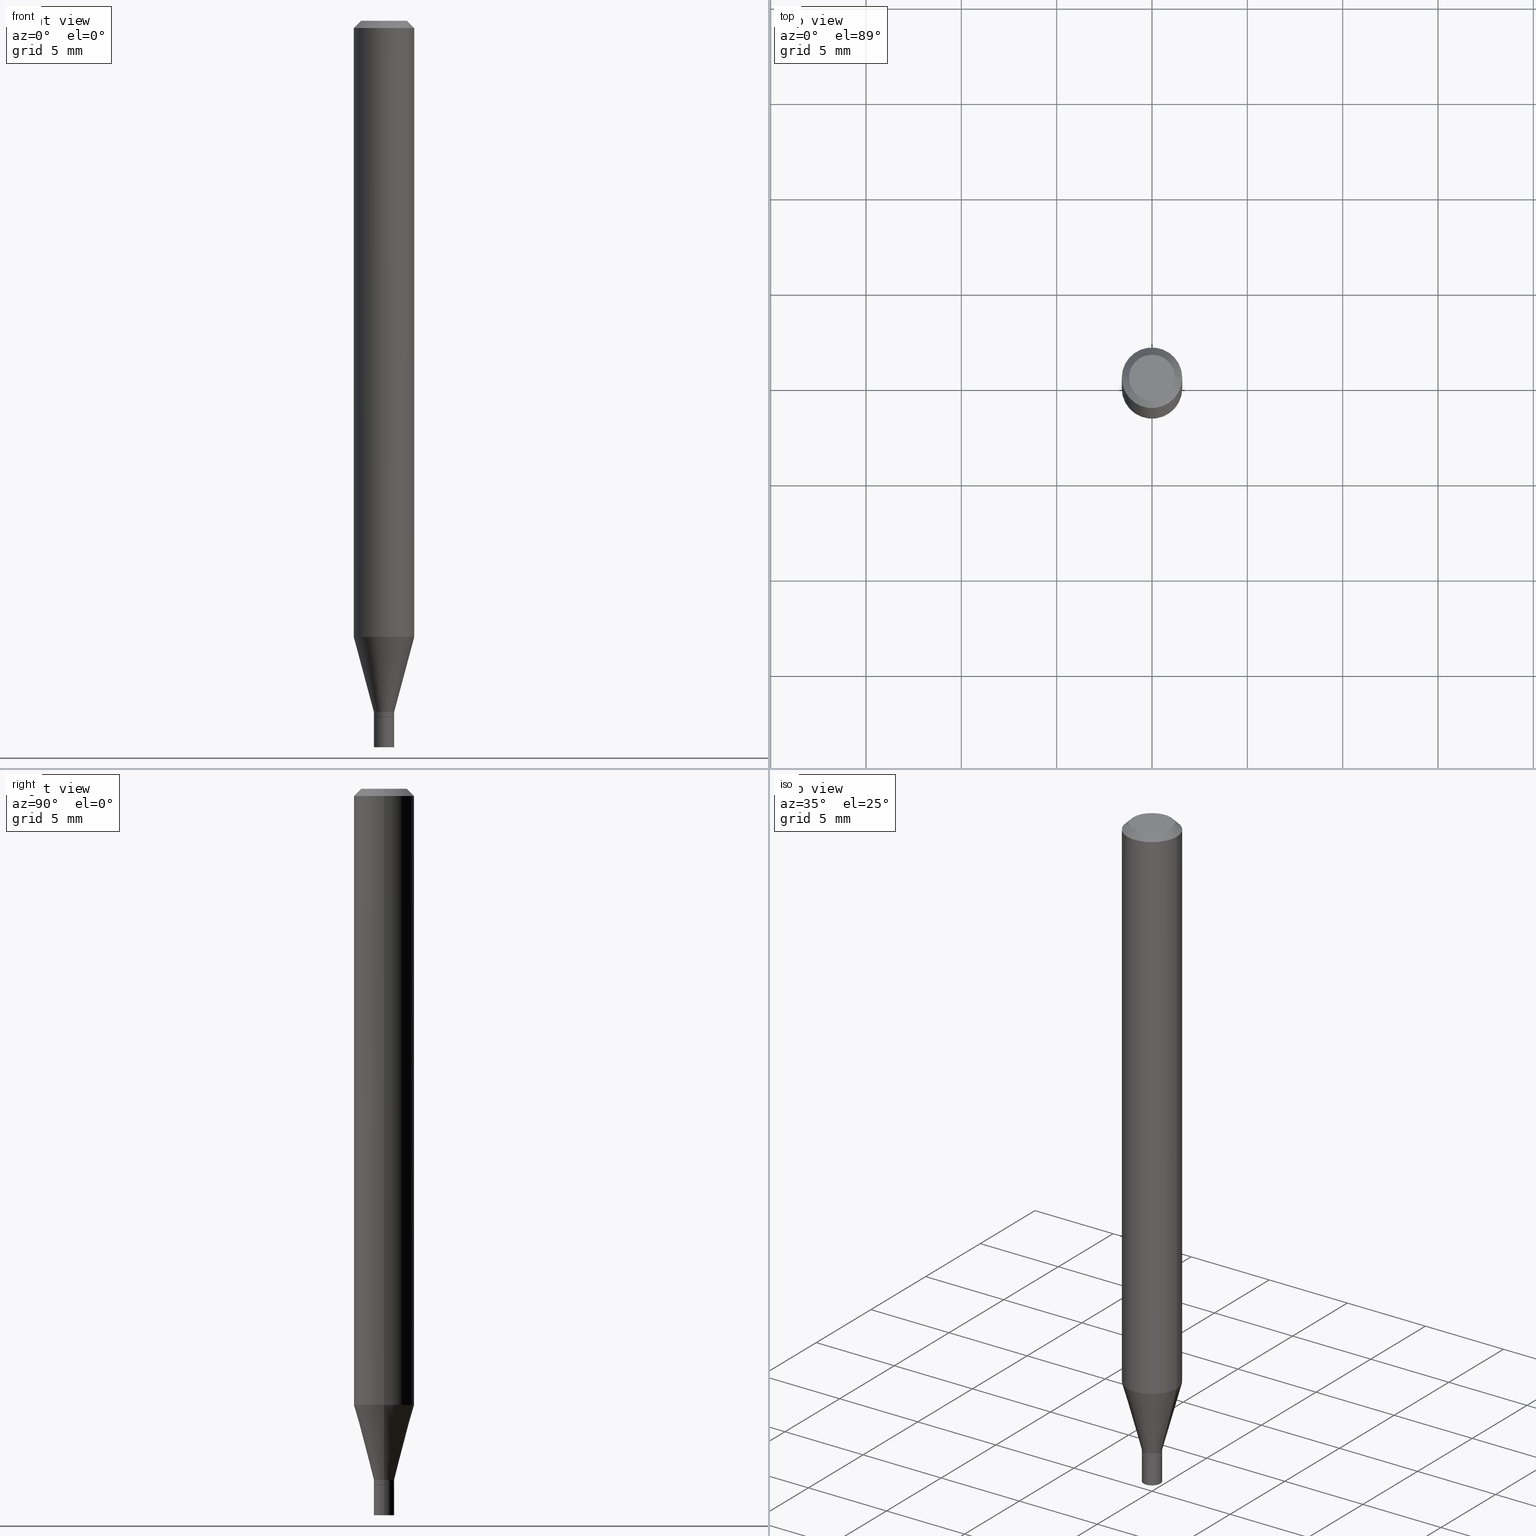
[diagram: canonical four-view strip — front | top / right | iso, engineering-drawing reading convention]
A machine part, canonical four-view strip (front | top / right | iso — engineering-drawing reading convention). The complete STEP part file that produces these views, byte-faithful:
ISO-10303-21;
HEADER;
FILE_DESCRIPTION (( 'STEP AP203' ),
    '1' );
FILE_NAME ('00409.STEP',
    '2024-03-19T21:11:41',
    ( '' ),
    ( '' ),
    'SwSTEP 2.0',
    'SolidWorks 2023',
    '' );
FILE_SCHEMA (( 'CONFIG_CONTROL_DESIGN' ));
ENDSEC;

DATA;
#1 = DIRECTION ( 'NONE',  ( 1.000000000000000000, -6.982962677686266711E-15, 0.000000000000000000 ) ) ;
#2 = PERSON_AND_ORGANIZATION ( #88, #220 ) ;
#3 = AXIS2_PLACEMENT_3D ( 'NONE', #415, #164, #121 ) ;
#4 = EDGE_CURVE ( 'NONE', #352, #408, #286, .T. ) ;
#5 = DIRECTION ( 'NONE',  ( 2.445468806185136597E-29, -3.491481338843145583E-15, -1.000000000000000000 ) ) ;
#6 = ORIENTED_EDGE ( 'NONE', *, *, #185, .F. ) ;
#7 =( NAMED_UNIT ( * ) SI_UNIT ( $, .STERADIAN. ) SOLID_ANGLE_UNIT ( ) );
#8 = DIRECTION ( 'NONE',  ( 2.438088387897960049E-29, -3.491481338843145188E-15, -1.000000000000000000 ) ) ;
#9 = EDGE_LOOP ( 'NONE', ( #34, #39 ) ) ;
#10 = COORDINATED_UNIVERSAL_TIME_OFFSET ( 5, 0, .BEHIND. ) ;
#11 = LINE ( 'NONE', #258, #17 ) ;
#12 = ORIENTED_EDGE ( 'NONE', *, *, #67, .F. ) ;
#13 = ORIENTED_EDGE ( 'NONE', *, *, #276, .F. ) ;
#14 = APPROVAL_ROLE ( '' ) ;
#15 = VECTOR ( 'NONE', #165, 39.37007874015748143 ) ;
#16 = DIRECTION ( 'NONE',  ( 0.2588190451025217387, 1.565188264969619207E-15, 0.9659258262890679791 ) ) ;
#17 = VECTOR ( 'NONE', #79, 39.37007874015748143 ) ;
#18 =( GEOMETRIC_REPRESENTATION_CONTEXT ( 3 ) GLOBAL_UNCERTAINTY_ASSIGNED_CONTEXT ( ( #132 ) ) GLOBAL_UNIT_ASSIGNED_CONTEXT ( ( #290, #73, #7 ) ) REPRESENTATION_CONTEXT ( 'NONE', 'WORKASPACE' ) );
#19 = ORIENTED_EDGE ( 'NONE', *, *, #95, .T. ) ;
#20 = LINE ( 'NONE', #141, #349 ) ;
#21 = CARTESIAN_POINT ( 'NONE',  ( 0.04749999999999999362, -4.035134999187576158E-16, 1.317956160873497667E-16 ) ) ;
#22 = CC_DESIGN_PERSON_AND_ORGANIZATION_ASSIGNMENT ( #57, #208, ( #96 ) ) ;
#23 = CARTESIAN_POINT ( 'NONE',  ( 3.489683986426190072E-29, -4.982343870529169189E-15, -1.427000000000000046 ) ) ;
#24 = AXIS2_PLACEMENT_3D ( 'NONE', #25, #26, #252 ) ;
#25 = CARTESIAN_POINT ( 'NONE',  ( 0.000000000000000000, 0.000000000000000000, 0.000000000000000000 ) ) ;
#26 = DIRECTION ( 'NONE',  ( -2.445468806185136597E-29, 3.491481338843145583E-15, 1.000000000000000000 ) ) ;
#27 = EDGE_CURVE ( 'NONE', #87, #160, #319, .T. ) ;
#28 = PRODUCT_DEFINITION_SHAPE ( 'NONE', 'NONE',  #291 ) ;
#29 = FACE_OUTER_BOUND ( 'NONE', #241, .T. ) ;
#30 = AXIS2_PLACEMENT_3D ( 'NONE', #268, #369, #37 ) ;
#31 = EDGE_CURVE ( 'NONE', #275, #419, #325, .T. ) ;
#32 = EDGE_CURVE ( 'NONE', #453, #302, #423, .T. ) ;
#33 = LOCAL_TIME ( 17, 11, 41.00000000000000000, #321 ) ;
#34 = ORIENTED_EDGE ( 'NONE', *, *, #27, .T. ) ;
#35 = CARTESIAN_POINT ( 'NONE',  ( 0.000000000000000000, 0.000000000000000000, 0.000000000000000000 ) ) ;
#36 = ORIENTED_EDGE ( 'NONE', *, *, #66, .T. ) ;
#37 = DIRECTION ( 'NONE',  ( 1.000000000000000000, -6.982962677686265922E-15, 0.000000000000000000 ) ) ;
#38 = DIRECTION ( 'NONE',  ( 1.000000000000000000, -6.982962677686265922E-15, 4.876176775795935232E-29 ) ) ;
#39 = ORIENTED_EDGE ( 'NONE', *, *, #254, .T. ) ;
#40 = ORIENTED_EDGE ( 'NONE', *, *, #95, .F. ) ;
#41 = CLOSED_SHELL ( 'NONE', ( #101, #214, #245, #184, #99, #205, #353, #78, #128, #391, #74, #218 ) ) ;
#42 = DIRECTION ( 'NONE',  ( 1.000000000000000000, -6.982962677686263555E-15, 0.000000000000000000 ) ) ;
#43 = VECTOR ( 'NONE', #355, 39.37007874015748143 ) ;
#44 = CARTESIAN_POINT ( 'NONE',  ( 3.668203209277704895E-29, -5.237222008264718177E-15, -1.500000000000000222 ) ) ;
#45 = ORIENTED_EDGE ( 'NONE', *, *, #171, .T. ) ;
#46 = PERSON_AND_ORGANIZATION_ROLE ( 'design_owner' ) ;
#47 = DIRECTION ( 'NONE',  ( -2.445468806185136597E-29, 3.491481338843145583E-15, 1.000000000000000000 ) ) ;
#48 = ORIENTED_EDGE ( 'NONE', *, *, #4, .T. ) ;
#49 = PERSON_AND_ORGANIZATION ( #88, #220 ) ;
#50 = DIRECTION ( 'NONE',  ( 1.000000000000000000, -6.982962677686266711E-15, 4.876176775795936353E-29 ) ) ;
#51 = DIRECTION ( 'NONE',  ( -2.445468806185136597E-29, 3.491481338843145583E-15, 1.000000000000000000 ) ) ;
#52 = APPLICATION_CONTEXT ( 'configuration controlled 3d designs of mechanical parts and assemblies' ) ;
#53 = CONICAL_SURFACE ( 'NONE', #402, 0.02050000000000000086, 0.7853981633974739252 ) ;
#54 = CIRCLE ( 'NONE', #147, 0.06250000000000000000 ) ;
#55 = DIRECTION ( 'NONE',  ( -2.445468806185136597E-29, 3.491481338843145583E-15, 1.000000000000000000 ) ) ;
#56 = CALENDAR_DATE ( 2024, 19, 3 ) ;
#57 = PERSON_AND_ORGANIZATION ( #88, #220 ) ;
#58 = SECURITY_CLASSIFICATION_LEVEL ( 'unclassified' ) ;
#59 = CALENDAR_DATE ( 2024, 19, 3 ) ;
#60 = AXIS2_PLACEMENT_3D ( 'NONE', #129, #75, #50 ) ;
#61 = LOCAL_TIME ( 17, 11, 41.00000000000000000, #10 ) ;
#62 = DIRECTION ( 'NONE',  ( -2.445468806185136597E-29, 3.491481338843145583E-15, 1.000000000000000000 ) ) ;
#63 = DIRECTION ( 'NONE',  ( 1.000000000000000000, -6.982962677686266711E-15, 4.876176775795936353E-29 ) ) ;
#64 = CARTESIAN_POINT ( 'NONE',  ( 3.514138674488041056E-29, -5.017258683917600838E-15, -1.437000000000000055 ) ) ;
#65 = AXIS2_PLACEMENT_3D ( 'NONE', #457, #100, #249 ) ;
#66 = EDGE_CURVE ( 'NONE', #295, #302, #76, .T. ) ;
#67 = EDGE_CURVE ( 'NONE', #72, #295, #279, .T. ) ;
#68 = VERTEX_POINT ( 'NONE', #190 ) ;
#69 = AXIS2_PLACEMENT_3D ( 'NONE', #421, #169, #216 ) ;
#70 = LOCAL_TIME ( 17, 11, 41.00000000000000000, #346 ) ;
#71 = FACE_OUTER_BOUND ( 'NONE', #441, .T. ) ;
#72 = VERTEX_POINT ( 'NONE', #93 ) ;
#73 =( NAMED_UNIT ( * ) PLANE_ANGLE_UNIT ( ) SI_UNIT ( $, .RADIAN. ) );
#74 = ADVANCED_FACE ( 'NONE', ( #267 ), #53, .T. ) ;
#75 = DIRECTION ( 'NONE',  ( -2.445468806185136597E-29, 3.491481338843145583E-15, 1.000000000000000000 ) ) ;
#76 = LINE ( 'NONE', #305, #15 ) ;
#77 = EDGE_LOOP ( 'NONE', ( #400, #381, #344, #92 ) ) ;
#78 = ADVANCED_FACE ( 'NONE', ( #256 ), #206, .T. ) ;
#79 = DIRECTION ( 'NONE',  ( -2.445468806185136877E-29, 3.491481338843145188E-15, 1.000000000000000000 ) ) ;
#80 = CARTESIAN_POINT ( 'NONE',  ( 0.06250000000000000000, -4.878018029249550992E-15, -1.272119891485891996 ) ) ;
#81 = ORIENTED_EDGE ( 'NONE', *, *, #222, .F. ) ;
#82 = VECTOR ( 'NONE', #136, 39.37007874015748143 ) ;
#83 = CARTESIAN_POINT ( 'NONE',  ( -0.02050000000000000086, -4.868948195912669364E-15, -1.437000000000000055 ) ) ;
#84 = CONICAL_SURFACE ( 'NONE', #251, 0.06250000000000000000, 0.7853981633974439491 ) ;
#85 = CARTESIAN_POINT ( 'NONE',  ( 0.000000000000000000, 0.000000000000000000, 0.000000000000000000 ) ) ;
#86 = ORIENTED_EDGE ( 'NONE', *, *, #324, .F. ) ;
#87 = VERTEX_POINT ( 'NONE', #322 ) ;
#88 = PERSON ( 'UNSPECIFIED', 'UNSPECIFIED', 'UNSPECIFIED', ('UNSPECIFIED'), ('UNSPECIFIED'), ('UNSPECIFIED') ) ;
#89 = APPROVAL ( #201, 'UNSPECIFIED' ) ;
#90 = DIRECTION ( 'NONE',  ( -2.445468806185136597E-29, 3.491481338843145583E-15, 1.000000000000000000 ) ) ;
#91 = ORIENTED_EDGE ( 'NONE', *, *, #330, .T. ) ;
#92 = ORIENTED_EDGE ( 'NONE', *, *, #309, .F. ) ;
#93 = CARTESIAN_POINT ( 'NONE',  ( -0.02099999999999993192, -4.415311774031822362E-15, -1.427000000000000046 ) ) ;
#94 = AXIS2_PLACEMENT_3D ( 'NONE', #310, #422, #410 ) ;
#95 = EDGE_CURVE ( 'NONE', #113, #449, #20, .T. ) ;
#96 = PRODUCT_DEFINITION_FORMATION_WITH_SPECIFIED_SOURCE ( 'ANY', '', #223, .NOT_KNOWN. ) ;
#97 = DIRECTION ( 'NONE',  ( 1.000000000000000000, -6.982962677686263555E-15, 0.000000000000000000 ) ) ;
#98 = PERSON_AND_ORGANIZATION_ROLE ( 'creator' ) ;
#99 = ADVANCED_FACE ( 'NONE', ( #394 ), #143, .T. ) ;
#100 = DIRECTION ( 'NONE',  ( -2.445468806185136597E-29, 3.491481338843145583E-15, 1.000000000000000000 ) ) ;
#101 = ADVANCED_FACE ( 'NONE', ( #359 ), #426, .T. ) ;
#102 = LINE ( 'NONE', #178, #238 ) ;
#103 = EDGE_CURVE ( 'NONE', #452, #191, #462, .T. ) ;
#104 = DIRECTION ( 'NONE',  ( -2.438088387897960049E-29, 3.491481338843145188E-15, 1.000000000000000000 ) ) ;
#105 = AXIS2_PLACEMENT_3D ( 'NONE', #236, #339, #170 ) ;
#106 = CIRCLE ( 'NONE', #213, 0.02099999999999993192 ) ;
#107 = CC_DESIGN_PERSON_AND_ORGANIZATION_ASSIGNMENT ( #261, #98, ( #96 ) ) ;
#108 = MANIFOLD_SOLID_BREP ( 'Body-Move/Copy2[2]', #41 ) ;
#109 = DIRECTION ( 'NONE',  ( 1.000000000000000000, -6.982962677686261977E-15, 0.000000000000000000 ) ) ;
#110 = APPROVAL_STATUS ( 'not_yet_approved' ) ;
#111 = CARTESIAN_POINT ( 'NONE',  ( 3.489683986426190072E-29, -4.982343870529169189E-15, -1.427000000000000046 ) ) ;
#112 = EDGE_CURVE ( 'NONE', #148, #449, #389, .T. ) ;
#113 = VERTEX_POINT ( 'NONE', #21 ) ;
#114 = DATE_AND_TIME ( #197, #193 ) ;
#115 = AXIS2_PLACEMENT_3D ( 'NONE', #176, #253, #63 ) ;
#116 = ORIENTED_EDGE ( 'NONE', *, *, #112, .F. ) ;
#117 = PLANE ( 'NONE',  #192 ) ;
#118 = DIRECTION ( 'NONE',  ( -2.445468806185136597E-29, 3.491481338843145583E-15, 1.000000000000000000 ) ) ;
#119 = ORIENTED_EDGE ( 'NONE', *, *, #4, .F. ) ;
#120 = CARTESIAN_POINT ( 'NONE',  ( -0.06250000000000000000, -1.802888331138340782E-15, -0.01499999999999999944 ) ) ;
#121 = DIRECTION ( 'NONE',  ( -1.000000000000000000, 6.982962677686265922E-15, -4.876176775795935793E-29 ) ) ;
#122 = CARTESIAN_POINT ( 'NONE',  ( -0.02099999999999993192, -4.833129896019548018E-15, -1.427000000000000046 ) ) ;
#123 = EDGE_LOOP ( 'NONE', ( #40, #269, #385, #257 ) ) ;
#124 = PERSON_AND_ORGANIZATION_ROLE ( 'creator' ) ;
#125 = CARTESIAN_POINT ( 'NONE',  ( 3.668203209277705088E-31, -5.237222008264718399E-17, -0.01499999999999999944 ) ) ;
#126 = CARTESIAN_POINT ( 'NONE',  ( 3.514138674488041056E-29, -5.017258683917600838E-15, -1.437000000000000055 ) ) ;
#127 = ORIENTED_EDGE ( 'NONE', *, *, #31, .T. ) ;
#128 = ADVANCED_FACE ( 'NONE', ( #173 ), #303, .F. ) ;
#129 = CARTESIAN_POINT ( 'NONE',  ( 0.000000000000000000, 0.000000000000000000, 0.000000000000000000 ) ) ;
#130 = AXIS2_PLACEMENT_3D ( 'NONE', #367, #384, #266 ) ;
#131 = CYLINDRICAL_SURFACE ( 'NONE', #314, 0.02100000000000000477 ) ;
#132 = UNCERTAINTY_MEASURE_WITH_UNIT (LENGTH_MEASURE( 1.000000000000000082E-05 ), #290, 'distance_accuracy_value', 'NONE');
#133 = EDGE_LOOP ( 'NONE', ( #195, #227, #340, #260 ) ) ;
#134 = LINE ( 'NONE', #315, #287 ) ;
#135 = FACE_OUTER_BOUND ( 'NONE', #386, .T. ) ;
#136 = DIRECTION ( 'NONE',  ( -0.7071067811865444641, 2.468850131082224717E-15, -0.7071067811865505703 ) ) ;
#137 = COORDINATED_UNIVERSAL_TIME_OFFSET ( 5, 0, .BEHIND. ) ;
#138 = EDGE_CURVE ( 'NONE', #449, #302, #139, .T. ) ;
#139 = CIRCLE ( 'NONE', #130, 0.06250000000000000000 ) ;
#140 = ADVANCED_FACE ( 'NONE', ( #244 ), #131, .T. ) ;
#141 = CARTESIAN_POINT ( 'NONE',  ( 0.06250000000000000000, -4.811533449433679005E-16, -0.01499999999999999944 ) ) ;
#142 = DIRECTION ( 'NONE',  ( -2.445468806185136877E-29, 3.491481338843145188E-15, 1.000000000000000000 ) ) ;
#143 = CONICAL_SURFACE ( 'NONE', #326, 0.02099999999999993192, 0.2617993877991504625 ) ;
#144 = LENGTH_MEASURE_WITH_UNIT ( LENGTH_MEASURE( 0.02539999999999999897 ), #396 );
#145 = APPROVAL_PERSON_ORGANIZATION ( #242, #433, #382 ) ;
#146 = DIRECTION ( 'NONE',  ( -2.445468806185136597E-29, 3.491481338843145583E-15, 1.000000000000000000 ) ) ;
#147 = AXIS2_PLACEMENT_3D ( 'NONE', #347, #332, #1 ) ;
#148 = VERTEX_POINT ( 'NONE', #80 ) ;
#149 = ORIENTED_EDGE ( 'NONE', *, *, #138, .F. ) ;
#150 = DIRECTION ( 'NONE',  ( 1.000000000000000000, 0.000000000000000000, 0.000000000000000000 ) ) ;
#151 = DIRECTION ( 'NONE',  ( 1.000000000000000000, -6.982962677686266711E-15, 4.876176775795935793E-29 ) ) ;
#152 = ORIENTED_EDGE ( 'NONE', *, *, #67, .T. ) ;
#153 = APPLICATION_PROTOCOL_DEFINITION ( 'international standard', 'config_control_design', 1994, #284 ) ;
#154 = APPROVAL_PERSON_ORGANIZATION ( #49, #89, #14 ) ;
#155 = DIRECTION ( 'NONE',  ( 2.445468806185136597E-29, -3.491481338843145583E-15, -1.000000000000000000 ) ) ;
#156 = ORIENTED_EDGE ( 'NONE', *, *, #185, .T. ) ;
#157 = EDGE_LOOP ( 'NONE', ( #336, #48, #438, #329 ) ) ;
#158 = CARTESIAN_POINT ( 'NONE',  ( 3.110929512356370285E-29, -4.441582861894159323E-15, -1.272119891485891996 ) ) ;
#159 = DESIGN_CONTEXT ( 'detailed design', #284, 'design' ) ;
#160 = VERTEX_POINT ( 'NONE', #240 ) ;
#161 = ORIENTED_EDGE ( 'NONE', *, *, #317, .F. ) ;
#162 = ADVANCED_FACE ( 'NONE', ( #374 ), #379, .F. ) ;
#163 = DIRECTION ( 'NONE',  ( -1.000000000000000000, 6.982962677686266711E-15, 0.000000000000000000 ) ) ;
#164 = DIRECTION ( 'NONE',  ( 2.438088387897960049E-29, -3.491481338843145188E-15, -1.000000000000000000 ) ) ;
#165 = DIRECTION ( 'NONE',  ( -2.445468806185136877E-29, 3.491481338843145188E-15, 1.000000000000000000 ) ) ;
#166 = ORIENTED_EDGE ( 'NONE', *, *, #328, .T. ) ;
#167 = AXIS2_PLACEMENT_3D ( 'NONE', #44, #51, #307 ) ;
#168 = CIRCLE ( 'NONE', #313, 0.02099999999999993192 ) ;
#169 = DIRECTION ( 'NONE',  ( -2.445468806185136597E-29, 3.491481338843145583E-15, 1.000000000000000000 ) ) ;
#170 = DIRECTION ( 'NONE',  ( 1.000000000000000000, -6.982962677686284854E-15, 0.000000000000000000 ) ) ;
#171 = EDGE_CURVE ( 'NONE', #113, #453, #429, .T. ) ;
#172 = PRODUCT_RELATED_PRODUCT_CATEGORY ( 'detail', '', ( #223 ) ) ;
#173 = FACE_OUTER_BOUND ( 'NONE', #399, .T. ) ;
#174 = APPROVAL_STATUS ( 'not_yet_approved' ) ;
#175 = CIRCLE ( 'NONE', #434, 0.04749999999999999362 ) ;
#176 = CARTESIAN_POINT ( 'NONE',  ( 0.000000000000000000, 0.000000000000000000, 0.000000000000000000 ) ) ;
#177 = DATE_AND_TIME ( #56, #33 ) ;
#178 = CARTESIAN_POINT ( 'NONE',  ( 0.02100000000000000477, -1.466422162314116246E-16, 1.023997122917146650E-30 ) ) ;
#179 = CARTESIAN_POINT ( 'NONE',  ( -0.02099999999999992498, 1.492139745096205060E-16, -1.032976368953526656E-30 ) ) ;
#180 = VECTOR ( 'NONE', #456, 39.37007874015748854 ) ;
#181 = AXIS2_PLACEMENT_3D ( 'NONE', #199, #189, #343 ) ;
#182 = DIMENSIONAL_EXPONENTS ( 1.000000000000000000, 0.000000000000000000, 0.000000000000000000, 0.000000000000000000, 0.000000000000000000, 0.000000000000000000, 0.000000000000000000 ) ;
#183 = DIRECTION ( 'NONE',  ( 1.000000000000000000, -6.982962677686265922E-15, 4.876176775795935793E-29 ) ) ;
#184 = ADVANCED_FACE ( 'NONE', ( #333 ), #235, .T. ) ;
#185 = EDGE_CURVE ( 'NONE', #68, #148, #203, .T. ) ;
#186 = EDGE_LOOP ( 'NONE', ( #350, #264, #204, #365 ) ) ;
#187 = DIRECTION ( 'NONE',  ( -2.445468806185136597E-29, 3.491481338843145583E-15, 1.000000000000000000 ) ) ;
#188 = DIRECTION ( 'NONE',  ( -2.445468806185136597E-29, 3.491481338843145583E-15, 1.000000000000000000 ) ) ;
#189 = DIRECTION ( 'NONE',  ( -2.438088387897960049E-29, 3.491481338843145188E-15, 1.000000000000000000 ) ) ;
#190 = CARTESIAN_POINT ( 'NONE',  ( 0.02099999999999993192, -5.128986086760580222E-15, -1.427000000000000046 ) ) ;
#191 = VERTEX_POINT ( 'NONE', #455 ) ;
#192 = AXIS2_PLACEMENT_3D ( 'NONE', #262, #8, #407 ) ;
#193 = LOCAL_TIME ( 17, 11, 41.00000000000000000, #337 ) ;
#194 = DIRECTION ( 'NONE',  ( 1.000000000000000000, -6.982962677686266711E-15, 4.876176775795935793E-29 ) ) ;
#195 = ORIENTED_EDGE ( 'NONE', *, *, #464, .F. ) ;
#196 = ORIENTED_EDGE ( 'NONE', *, *, #138, .T. ) ;
#197 = CALENDAR_DATE ( 2024, 19, 3 ) ;
#198 = CARTESIAN_POINT ( 'NONE',  ( 0.02099999999999992498, -1.466422162314110822E-16, 1.023997122917142971E-30 ) ) ;
#199 = CARTESIAN_POINT ( 'NONE',  ( 3.576687321579069994E-29, -5.368277968210015545E-15, -1.500000000000000222 ) ) ;
#200 = ADVANCED_BREP_SHAPE_REPRESENTATION ( '00409', ( #430, #108, #272 ), #18 ) ;
#201 = APPROVAL_STATUS ( 'not_yet_approved' ) ;
#202 = DIRECTION ( 'NONE',  ( -2.445468806185136597E-29, 3.491481338843145583E-15, 1.000000000000000000 ) ) ;
#203 = LINE ( 'NONE', #348, #362 ) ;
#204 = ORIENTED_EDGE ( 'NONE', *, *, #103, .F. ) ;
#205 = ADVANCED_FACE ( 'NONE', ( #135 ), #248, .T. ) ;
#206 = CONICAL_SURFACE ( 'NONE', #461, 0.06250000000000000000, 0.7853981633974439491 ) ;
#207 = DIRECTION ( 'NONE',  ( 1.000000000000000000, -6.982962677686261977E-15, 0.000000000000000000 ) ) ;
#208 = PERSON_AND_ORGANIZATION_ROLE ( 'design_supplier' ) ;
#209 = APPROVAL ( #174, 'UNSPECIFIED' ) ;
#210 = CARTESIAN_POINT ( 'NONE',  ( 0.06250000000000000000, -4.364351673553916694E-16, 3.047610484872459871E-30 ) ) ;
#211 = SHAPE_DEFINITION_REPRESENTATION ( #28, #200 ) ;
#212 = PERSON_AND_ORGANIZATION_ROLE ( 'classification_officer' ) ;
#213 = AXIS2_PLACEMENT_3D ( 'NONE', #111, #418, #42 ) ;
#214 = ADVANCED_FACE ( 'NONE', ( #440 ), #388, .T. ) ;
#215 = APPROVAL_PERSON_ORGANIZATION ( #424, #209, #250 ) ;
#216 = DIRECTION ( 'NONE',  ( 1.000000000000000000, -6.982962677686284854E-15, 0.000000000000000000 ) ) ;
#217 = DIRECTION ( 'NONE',  ( 1.000000000000000000, -6.982962677686267499E-15, 4.884662768193073002E-29 ) ) ;
#218 = ADVANCED_FACE ( 'NONE', ( #338 ), #442, .T. ) ;
#219 = VECTOR ( 'NONE', #243, 39.37007874015748143 ) ;
#220 = ORGANIZATION ( 'UNSPECIFIED', 'UNSPECIFIED', '' ) ;
#221 = CC_DESIGN_DATE_AND_TIME_ASSIGNMENT ( #177, #280, ( #364 ) ) ;
#222 = EDGE_CURVE ( 'NONE', #191, #452, #226, .T. ) ;
#223 = PRODUCT ( '00409', '00409', '', ( #298 ) ) ;
#224 = AXIS2_PLACEMENT_3D ( 'NONE', #126, #233, #109 ) ;
#225 = EDGE_CURVE ( 'NONE', #148, #295, #363, .T. ) ;
#226 = CIRCLE ( 'NONE', #30, 0.02099999999999992498 ) ;
#227 = ORIENTED_EDGE ( 'NONE', *, *, #222, .T. ) ;
#228 = CARTESIAN_POINT ( 'NONE',  ( 3.514138674488041056E-29, -5.017258683917600838E-15, -1.437000000000000055 ) ) ;
#229 = DIRECTION ( 'NONE',  ( -2.445468806185136597E-29, 3.491481338843145583E-15, 1.000000000000000000 ) ) ;
#230 = EDGE_LOOP ( 'NONE', ( #311, #152, #444, #6 ) ) ;
#231 = CALENDAR_DATE ( 2024, 19, 3 ) ;
#232 = CARTESIAN_POINT ( 'NONE',  ( -0.06250000000000000000, -3.997493652044096706E-15, -1.272119891485891996 ) ) ;
#233 = DIRECTION ( 'NONE',  ( -2.445468806185136597E-29, 3.491481338843145583E-15, 1.000000000000000000 ) ) ;
#234 = DIRECTION ( 'NONE',  ( 1.000000000000000000, -6.982962677686261977E-15, 0.000000000000000000 ) ) ;
#235 = CYLINDRICAL_SURFACE ( 'NONE', #357, 0.06250000000000000000 ) ;
#236 = CARTESIAN_POINT ( 'NONE',  ( 3.514138674488041056E-29, -5.017258683917600838E-15, -1.437000000000000055 ) ) ;
#237 = DATE_AND_TIME ( #231, #61 ) ;
#238 = VECTOR ( 'NONE', #142, 39.37007874015748143 ) ;
#239 = LINE ( 'NONE', #198, #219 ) ;
#240 = CARTESIAN_POINT ( 'NONE',  ( -0.02100000000000000477, -4.978026371581538336E-15, -1.437000000000000055 ) ) ;
#241 = EDGE_LOOP ( 'NONE', ( #13, #420 ) ) ;
#242 = PERSON_AND_ORGANIZATION ( #88, #220 ) ;
#243 = DIRECTION ( 'NONE',  ( -2.445468806185136877E-29, 3.491481338843145188E-15, 1.000000000000000000 ) ) ;
#244 = FACE_OUTER_BOUND ( 'NONE', #371, .T. ) ;
#245 = ADVANCED_FACE ( 'NONE', ( #71 ), #84, .T. ) ;
#246 = ORIENTED_EDGE ( 'NONE', *, *, #373, .F. ) ;
#247 = CARTESIAN_POINT ( 'NONE',  ( 3.514138674488041056E-29, -5.017258683917600838E-15, -1.437000000000000055 ) ) ;
#248 = CONICAL_SURFACE ( 'NONE', #425, 0.02099999999999993192, 0.2617993877991504625 ) ;
#249 = DIRECTION ( 'NONE',  ( 1.000000000000000000, -6.982962677686265922E-15, 0.000000000000000000 ) ) ;
#250 = APPROVAL_ROLE ( '' ) ;
#251 = AXIS2_PLACEMENT_3D ( 'NONE', #125, #155, #163 ) ;
#252 = DIRECTION ( 'NONE',  ( 1.000000000000000000, -6.982962677686265922E-15, 4.876176775795935232E-29 ) ) ;
#253 = DIRECTION ( 'NONE',  ( -2.445468806185136597E-29, 3.491481338843145583E-15, 1.000000000000000000 ) ) ;
#254 = EDGE_CURVE ( 'NONE', #160, #87, #259, .T. ) ;
#255 = EDGE_CURVE ( 'NONE', #295, #148, #451, .T. ) ;
#256 = FACE_OUTER_BOUND ( 'NONE', #123, .T. ) ;
#257 = ORIENTED_EDGE ( 'NONE', *, *, #309, .T. ) ;
#258 = CARTESIAN_POINT ( 'NONE',  ( -0.02100000000000000477, 1.492139745096210730E-16, -1.032976368953530510E-30 ) ) ;
#259 = CIRCLE ( 'NONE', #320, 0.02100000000000000477 ) ;
#260 = ORIENTED_EDGE ( 'NONE', *, *, #288, .F. ) ;
#261 = PERSON_AND_ORGANIZATION ( #88, #220 ) ;
#262 = CARTESIAN_POINT ( 'NONE',  ( 1.466422162314467535E-16, 0.02099999999999498795, -1.437000000000000055 ) ) ;
#263 = CARTESIAN_POINT ( 'NONE',  ( 3.514138674488041056E-29, -5.017258683917600838E-15, -1.437000000000000055 ) ) ;
#264 = ORIENTED_EDGE ( 'NONE', *, *, #356, .T. ) ;
#265 = DIRECTION ( 'NONE',  ( 1.000000000000000000, -6.982962677686263555E-15, 0.000000000000000000 ) ) ;
#266 = DIRECTION ( 'NONE',  ( 1.000000000000000000, -6.982962677686266711E-15, 0.000000000000000000 ) ) ;
#267 = FACE_OUTER_BOUND ( 'NONE', #448, .T. ) ;
#268 = CARTESIAN_POINT ( 'NONE',  ( 3.512915940084948815E-29, -5.015512943248179335E-15, -1.436500000000000110 ) ) ;
#269 = ORIENTED_EDGE ( 'NONE', *, *, #397, .F. ) ;
#270 = ORIENTED_EDGE ( 'NONE', *, *, #288, .T. ) ;
#271 = AXIS2_PLACEMENT_3D ( 'NONE', #35, #187, #194 ) ;
#272 = AXIS2_PLACEMENT_3D ( 'NONE', #406, #466, #150 ) ;
#273 = CARTESIAN_POINT ( 'NONE',  ( 3.110929512356370285E-29, -4.441582861894159323E-15, -1.272119891485891996 ) ) ;
#274 = ORIENTED_EDGE ( 'NONE', *, *, #103, .T. ) ;
#275 = VERTEX_POINT ( 'NONE', #83 ) ;
#276 = EDGE_CURVE ( 'NONE', #419, #275, #398, .T. ) ;
#277 = DIRECTION ( 'NONE',  ( -0.7071067811865656694, 7.493145998870420424E-15, 0.7071067811865294761 ) ) ;
#278 = CARTESIAN_POINT ( 'NONE',  ( 3.489683986426190072E-29, -4.982343870529169189E-15, -1.427000000000000046 ) ) ;
#279 = LINE ( 'NONE', #122, #180 ) ;
#280 = DATE_TIME_ROLE ( 'classification_date' ) ;
#281 = PERSON_AND_ORGANIZATION ( #88, #220 ) ;
#282 = AXIS2_PLACEMENT_3D ( 'NONE', #228, #202, #234 ) ;
#283 = DIRECTION ( 'NONE',  ( 0.7071067811865444641, -7.319954787623245001E-15, -0.7071067811865505703 ) ) ;
#284 = APPLICATION_CONTEXT ( 'configuration controlled 3d designs of mechanical parts and assemblies' ) ;
#285 = CARTESIAN_POINT ( 'NONE',  ( 0.02050000000000000086, -5.160409418810168864E-15, -1.437000000000000055 ) ) ;
#286 = CIRCLE ( 'NONE', #167, 0.02100000000000000477 ) ;
#287 = VECTOR ( 'NONE', #277, 39.37007874015748143 ) ;
#288 = EDGE_CURVE ( 'NONE', #72, #68, #106, .T. ) ;
#289 = CC_DESIGN_APPROVAL ( #89, ( #96 ) ) ;
#290 =( CONVERSION_BASED_UNIT ( 'INCH', #144 ) LENGTH_UNIT ( ) NAMED_UNIT ( #182 ) );
#291 = PRODUCT_DEFINITION ( 'UNKNOWN', '', #96, #159 ) ;
#292 = FACE_OUTER_BOUND ( 'NONE', #157, .T. ) ;
#293 = AXIS2_PLACEMENT_3D ( 'NONE', #263, #118, #306 ) ;
#294 = ORIENTED_EDGE ( 'NONE', *, *, #356, .F. ) ;
#295 = VERTEX_POINT ( 'NONE', #232 ) ;
#296 = CALENDAR_DATE ( 2024, 19, 3 ) ;
#297 = LINE ( 'NONE', #409, #334 ) ;
#298 = MECHANICAL_CONTEXT ( 'NONE', #52, 'mechanical' ) ;
#299 = CARTESIAN_POINT ( 'NONE',  ( 3.489683986426190072E-29, -4.982343870529169189E-15, -1.427000000000000046 ) ) ;
#300 = DIRECTION ( 'NONE',  ( 1.000000000000000000, -6.982962677686263555E-15, 0.000000000000000000 ) ) ;
#301 = AXIS2_PLACEMENT_3D ( 'NONE', #273, #47, #383 ) ;
#302 = VERTEX_POINT ( 'NONE', #120 ) ;
#303 = PLANE ( 'NONE',  #3 ) ;
#304 = CC_DESIGN_DATE_AND_TIME_ASSIGNMENT ( #237, #413, ( #291 ) ) ;
#305 = CARTESIAN_POINT ( 'NONE',  ( -0.06250000000000000000, 4.440892098500626162E-16, -3.074334431409316114E-30 ) ) ;
#306 = DIRECTION ( 'NONE',  ( 1.000000000000000000, -6.982962677686261977E-15, 0.000000000000000000 ) ) ;
#307 = DIRECTION ( 'NONE',  ( 1.000000000000000000, -6.982962677686284854E-15, 0.000000000000000000 ) ) ;
#308 = ORIENTED_EDGE ( 'NONE', *, *, #171, .F. ) ;
#309 = EDGE_CURVE ( 'NONE', #302, #449, #54, .T. ) ;
#310 = CARTESIAN_POINT ( 'NONE',  ( -3.223020679335594837E-45, 4.601619341103081537E-31, 1.317956160873471783E-16 ) ) ;
#311 = ORIENTED_EDGE ( 'NONE', *, *, #324, .T. ) ;
#312 = EDGE_LOOP ( 'NONE', ( #246, #119 ) ) ;
#313 = AXIS2_PLACEMENT_3D ( 'NONE', #299, #342, #265 ) ;
#314 = AXIS2_PLACEMENT_3D ( 'NONE', #85, #370, #38 ) ;
#315 = CARTESIAN_POINT ( 'NONE',  ( -0.02050000000000000086, -4.871597423086780565E-15, -1.437000000000000055 ) ) ;
#316 = CARTESIAN_POINT ( 'NONE',  ( -0.06250000000000000000, 3.840629472727444916E-16, -0.01499999999999999944 ) ) ;
#317 = EDGE_CURVE ( 'NONE', #452, #68, #239, .T. ) ;
#318 = DATE_AND_TIME ( #59, #358 ) ;
#319 = CIRCLE ( 'NONE', #105, 0.02100000000000000477 ) ;
#320 = AXIS2_PLACEMENT_3D ( 'NONE', #331, #188, #414 ) ;
#321 = COORDINATED_UNIVERSAL_TIME_OFFSET ( 5, 0, .BEHIND. ) ;
#322 = CARTESIAN_POINT ( 'NONE',  ( 0.02100000000000000477, -5.163900900149012660E-15, -1.437000000000000055 ) ) ;
#323 = CYLINDRICAL_SURFACE ( 'NONE', #24, 0.02100000000000000477 ) ;
#324 = EDGE_CURVE ( 'NONE', #68, #72, #168, .T. ) ;
#325 = CIRCLE ( 'NONE', #224, 0.02050000000000000086 ) ;
#326 = AXIS2_PLACEMENT_3D ( 'NONE', #23, #62, #97 ) ;
#327 = CARTESIAN_POINT ( 'NONE',  ( 0.02100000000000000477, -5.383864224496130787E-15, -1.500000000000000222 ) ) ;
#328 = EDGE_CURVE ( 'NONE', #419, #452, #297, .T. ) ;
#329 = ORIENTED_EDGE ( 'NONE', *, *, #254, .F. ) ;
#330 = EDGE_CURVE ( 'NONE', #352, #160, #11, .T. ) ;
#331 = CARTESIAN_POINT ( 'NONE',  ( 3.514138674488041056E-29, -5.017258683917600838E-15, -1.437000000000000055 ) ) ;
#332 = DIRECTION ( 'NONE',  ( -2.445468806185136597E-29, 3.491481338843145583E-15, 1.000000000000000000 ) ) ;
#333 = FACE_OUTER_BOUND ( 'NONE', #380, .T. ) ;
#334 = VECTOR ( 'NONE', #437, 39.37007874015748143 ) ;
#335 = CARTESIAN_POINT ( 'NONE',  ( 3.668203209277705088E-31, -5.237222008264718399E-17, -0.01499999999999999944 ) ) ;
#336 = ORIENTED_EDGE ( 'NONE', *, *, #330, .F. ) ;
#337 = COORDINATED_UNIVERSAL_TIME_OFFSET ( 5, 0, .BEHIND. ) ;
#338 = FACE_OUTER_BOUND ( 'NONE', #133, .T. ) ;
#339 = DIRECTION ( 'NONE',  ( -2.445468806185136597E-29, 3.491481338843145583E-15, 1.000000000000000000 ) ) ;
#340 = ORIENTED_EDGE ( 'NONE', *, *, #317, .T. ) ;
#341 = APPROVAL_DATE_TIME ( #114, #433 ) ;
#342 = DIRECTION ( 'NONE',  ( -2.445468806185136597E-29, 3.491481338843145583E-15, 1.000000000000000000 ) ) ;
#343 = DIRECTION ( 'NONE',  ( 1.000000000000000000, -6.982962677686265922E-15, 4.876176775795935793E-29 ) ) ;
#344 = ORIENTED_EDGE ( 'NONE', *, *, #112, .T. ) ;
#345 = ORIENTED_EDGE ( 'NONE', *, *, #32, .F. ) ;
#346 = COORDINATED_UNIVERSAL_TIME_OFFSET ( 5, 0, .BEHIND. ) ;
#347 = CARTESIAN_POINT ( 'NONE',  ( 3.668203209277705088E-31, -5.237222008264718399E-17, -0.01499999999999999944 ) ) ;
#348 = CARTESIAN_POINT ( 'NONE',  ( 0.02099999999999993192, -5.128986086760580222E-15, -1.427000000000000046 ) ) ;
#349 = VECTOR ( 'NONE', #283, 39.37007874015748143 ) ;
#350 = ORIENTED_EDGE ( 'NONE', *, *, #276, .T. ) ;
#351 = CC_DESIGN_APPROVAL ( #209, ( #364 ) ) ;
#352 = VERTEX_POINT ( 'NONE', #403 ) ;
#353 = ADVANCED_FACE ( 'NONE', ( #372 ), #366, .T. ) ;
#354 = ADVANCED_FACE ( 'NONE', ( #439 ), #117, .F. ) ;
#355 = DIRECTION ( 'NONE',  ( -2.445468806185136877E-29, 3.491481338843145188E-15, 1.000000000000000000 ) ) ;
#356 = EDGE_CURVE ( 'NONE', #275, #191, #134, .T. ) ;
#357 = AXIS2_PLACEMENT_3D ( 'NONE', #450, #90, #151 ) ;
#358 = LOCAL_TIME ( 17, 11, 41.00000000000000000, #137 ) ;
#359 = FACE_OUTER_BOUND ( 'NONE', #405, .T. ) ;
#360 = CARTESIAN_POINT ( 'NONE',  ( -3.223020679335594837E-45, 4.601619341103081537E-31, 1.317956160873471783E-16 ) ) ;
#361 = LINE ( 'NONE', #179, #416 ) ;
#362 = VECTOR ( 'NONE', #16, 39.37007874015748854 ) ;
#363 = CIRCLE ( 'NONE', #392, 0.06250000000000000000 ) ;
#364 = SECURITY_CLASSIFICATION ( '', '', #58 ) ;
#365 = ORIENTED_EDGE ( 'NONE', *, *, #328, .F. ) ;
#366 = CYLINDRICAL_SURFACE ( 'NONE', #271, 0.06250000000000000000 ) ;
#367 = CARTESIAN_POINT ( 'NONE',  ( 3.668203209277705088E-31, -5.237222008264718399E-17, -0.01499999999999999944 ) ) ;
#368 = APPLICATION_PROTOCOL_DEFINITION ( 'international standard', 'config_control_design', 1994, #52 ) ;
#369 = DIRECTION ( 'NONE',  ( -2.445468806185136597E-29, 3.491481338843145583E-15, 1.000000000000000000 ) ) ;
#370 = DIRECTION ( 'NONE',  ( -2.445468806185136597E-29, 3.491481338843145583E-15, 1.000000000000000000 ) ) ;
#371 = EDGE_LOOP ( 'NONE', ( #412, #91, #377, #376 ) ) ;
#372 = FACE_OUTER_BOUND ( 'NONE', #77, .T. ) ;
#373 = EDGE_CURVE ( 'NONE', #408, #352, #459, .T. ) ;
#374 = FACE_OUTER_BOUND ( 'NONE', #312, .T. ) ;
#375 = AXIS2_PLACEMENT_3D ( 'NONE', #64, #104, #183 ) ;
#376 = ORIENTED_EDGE ( 'NONE', *, *, #432, .F. ) ;
#377 = ORIENTED_EDGE ( 'NONE', *, *, #27, .F. ) ;
#378 = DIRECTION ( 'NONE',  ( 1.000000000000000000, -6.982962677686262766E-15, 0.000000000000000000 ) ) ;
#379 = PLANE ( 'NONE',  #181 ) ;
#380 = EDGE_LOOP ( 'NONE', ( #435, #36, #149, #116 ) ) ;
#381 = ORIENTED_EDGE ( 'NONE', *, *, #255, .T. ) ;
#382 = APPROVAL_ROLE ( '' ) ;
#383 = DIRECTION ( 'NONE',  ( 1.000000000000000000, -6.982962677686262766E-15, 0.000000000000000000 ) ) ;
#384 = DIRECTION ( 'NONE',  ( -2.445468806185136597E-29, 3.491481338843145583E-15, 1.000000000000000000 ) ) ;
#385 = ORIENTED_EDGE ( 'NONE', *, *, #32, .T. ) ;
#386 = EDGE_LOOP ( 'NONE', ( #12, #270, #156, #411 ) ) ;
#387 = APPROVAL_DATE_TIME ( #318, #209 ) ;
#388 = CONICAL_SURFACE ( 'NONE', #293, 0.02050000000000000086, 0.7853981633974739252 ) ;
#389 = LINE ( 'NONE', #210, #43 ) ;
#390 = CC_DESIGN_PERSON_AND_ORGANIZATION_ASSIGNMENT ( #2, #46, ( #223 ) ) ;
#391 = ADVANCED_FACE ( 'NONE', ( #29 ), #428, .F. ) ;
#392 = AXIS2_PLACEMENT_3D ( 'NONE', #158, #447, #378 ) ;
#393 = CC_DESIGN_PERSON_AND_ORGANIZATION_ASSIGNMENT ( #445, #124, ( #291 ) ) ;
#394 = FACE_OUTER_BOUND ( 'NONE', #230, .T. ) ;
#395 = CARTESIAN_POINT ( 'NONE',  ( 0.06250000000000000000, -4.888073874380388472E-16, -0.01499999999999999944 ) ) ;
#396 =( LENGTH_UNIT ( ) NAMED_UNIT ( * ) SI_UNIT ( $, .METRE. ) );
#397 = EDGE_CURVE ( 'NONE', #453, #113, #175, .T. ) ;
#398 = CIRCLE ( 'NONE', #282, 0.02050000000000000086 ) ;
#399 = EDGE_LOOP ( 'NONE', ( #465, #45 ) ) ;
#400 = ORIENTED_EDGE ( 'NONE', *, *, #66, .F. ) ;
#401 = APPROVAL_DATE_TIME ( #436, #89 ) ;
#402 = AXIS2_PLACEMENT_3D ( 'NONE', #247, #55, #207 ) ;
#403 = CARTESIAN_POINT ( 'NONE',  ( -0.02100000000000000477, -4.978026371581538336E-15, -1.500000000000000222 ) ) ;
#404 = CC_DESIGN_SECURITY_CLASSIFICATION ( #364, ( #96 ) ) ;
#405 = EDGE_LOOP ( 'NONE', ( #274, #417, #86, #161 ) ) ;
#406 = CARTESIAN_POINT ( 'NONE',  ( 0.000000000000000000, 0.000000000000000000, 0.000000000000000000 ) ) ;
#407 = DIRECTION ( 'NONE',  ( -1.000000000000000000, 6.982962677686265922E-15, -4.876176775795935793E-29 ) ) ;
#408 = VERTEX_POINT ( 'NONE', #327 ) ;
#409 = CARTESIAN_POINT ( 'NONE',  ( 0.02050000000000000086, -5.160409418810168864E-15, -1.437000000000000055 ) ) ;
#410 = DIRECTION ( 'NONE',  ( 1.000000000000000000, -6.982962677686267499E-15, 4.884662768193073002E-29 ) ) ;
#411 = ORIENTED_EDGE ( 'NONE', *, *, #255, .F. ) ;
#412 = ORIENTED_EDGE ( 'NONE', *, *, #373, .T. ) ;
#413 = DATE_TIME_ROLE ( 'creation_date' ) ;
#414 = DIRECTION ( 'NONE',  ( 1.000000000000000000, -6.982962677686284854E-15, 0.000000000000000000 ) ) ;
#415 = CARTESIAN_POINT ( 'NONE',  ( 3.316907271900976096E-16, 0.04749999999999999362, -9.994755555137580731E-17 ) ) ;
#416 = VECTOR ( 'NONE', #463, 39.37007874015748143 ) ;
#417 = ORIENTED_EDGE ( 'NONE', *, *, #464, .T. ) ;
#418 = DIRECTION ( 'NONE',  ( -2.445468806185136597E-29, 3.491481338843145583E-15, 1.000000000000000000 ) ) ;
#419 = VERTEX_POINT ( 'NONE', #285 ) ;
#420 = ORIENTED_EDGE ( 'NONE', *, *, #31, .F. ) ;
#421 = CARTESIAN_POINT ( 'NONE',  ( 3.668203209277704895E-29, -5.237222008264718177E-15, -1.500000000000000222 ) ) ;
#422 = DIRECTION ( 'NONE',  ( -2.445468806185136597E-29, 3.491481338843145583E-15, 1.000000000000000000 ) ) ;
#423 = LINE ( 'NONE', #316, #82 ) ;
#424 = PERSON_AND_ORGANIZATION ( #88, #220 ) ;
#425 = AXIS2_PLACEMENT_3D ( 'NONE', #278, #229, #300 ) ;
#426 = CYLINDRICAL_SURFACE ( 'NONE', #115, 0.02099999999999992498 ) ;
#427 = CC_DESIGN_PERSON_AND_ORGANIZATION_ASSIGNMENT ( #281, #212, ( #364 ) ) ;
#428 = PLANE ( 'NONE',  #375 ) ;
#429 = CIRCLE ( 'NONE', #94, 0.04749999999999999362 ) ;
#430 = MANIFOLD_SOLID_BREP ( 'Body-Move/Copy2[1]', #458 ) ;
#431 = CARTESIAN_POINT ( 'NONE',  ( 0.02099999999999992498, -5.162155159479590368E-15, -1.436500000000000110 ) ) ;
#432 = EDGE_CURVE ( 'NONE', #408, #87, #102, .T. ) ;
#433 = APPROVAL ( #110, 'UNSPECIFIED' ) ;
#434 = AXIS2_PLACEMENT_3D ( 'NONE', #360, #146, #217 ) ;
#435 = ORIENTED_EDGE ( 'NONE', *, *, #225, .T. ) ;
#436 = DATE_AND_TIME ( #296, #70 ) ;
#437 = DIRECTION ( 'NONE',  ( 0.7071067811865656694, -2.468850131082446387E-15, 0.7071067811865294761 ) ) ;
#438 = ORIENTED_EDGE ( 'NONE', *, *, #432, .T. ) ;
#439 = FACE_OUTER_BOUND ( 'NONE', #9, .T. ) ;
#440 = FACE_OUTER_BOUND ( 'NONE', #186, .T. ) ;
#441 = EDGE_LOOP ( 'NONE', ( #308, #19, #196, #345 ) ) ;
#442 = CYLINDRICAL_SURFACE ( 'NONE', #60, 0.02099999999999992498 ) ;
#443 = DIRECTION ( 'NONE',  ( -1.000000000000000000, 6.982962677686266711E-15, 0.000000000000000000 ) ) ;
#444 = ORIENTED_EDGE ( 'NONE', *, *, #225, .F. ) ;
#445 = PERSON_AND_ORGANIZATION ( #88, #220 ) ;
#446 = ADVANCED_FACE ( 'NONE', ( #292 ), #323, .T. ) ;
#447 = DIRECTION ( 'NONE',  ( -2.445468806185136597E-29, 3.491481338843145583E-15, 1.000000000000000000 ) ) ;
#448 = EDGE_LOOP ( 'NONE', ( #294, #127, #166, #81 ) ) ;
#449 = VERTEX_POINT ( 'NONE', #395 ) ;
#450 = CARTESIAN_POINT ( 'NONE',  ( 0.000000000000000000, 0.000000000000000000, 0.000000000000000000 ) ) ;
#451 = CIRCLE ( 'NONE', #301, 0.06250000000000000000 ) ;
#452 = VERTEX_POINT ( 'NONE', #431 ) ;
#453 = VERTEX_POINT ( 'NONE', #460 ) ;
#454 = CC_DESIGN_APPROVAL ( #433, ( #291 ) ) ;
#455 = CARTESIAN_POINT ( 'NONE',  ( -0.02099999999999992498, -4.866298968738558952E-15, -1.436500000000000110 ) ) ;
#456 = DIRECTION ( 'NONE',  ( -0.2588190451025217387, 5.211531920934551042E-15, 0.9659258262890679791 ) ) ;
#457 = CARTESIAN_POINT ( 'NONE',  ( 3.512915940084948815E-29, -5.015512943248179335E-15, -1.436500000000000110 ) ) ;
#458 = CLOSED_SHELL ( 'NONE', ( #140, #162, #446, #354 ) ) ;
#459 = CIRCLE ( 'NONE', #69, 0.02100000000000000477 ) ;
#460 = CARTESIAN_POINT ( 'NONE',  ( -0.04749999999999999362, 3.578768372314212971E-16, 1.317956160873447624E-16 ) ) ;
#461 = AXIS2_PLACEMENT_3D ( 'NONE', #335, #5, #443 ) ;
#462 = CIRCLE ( 'NONE', #65, 0.02099999999999992498 ) ;
#463 = DIRECTION ( 'NONE',  ( -2.445468806185136877E-29, 3.491481338843145188E-15, 1.000000000000000000 ) ) ;
#464 = EDGE_CURVE ( 'NONE', #191, #72, #361, .T. ) ;
#465 = ORIENTED_EDGE ( 'NONE', *, *, #397, .T. ) ;
#466 = DIRECTION ( 'NONE',  ( 0.000000000000000000, 0.000000000000000000, 1.000000000000000000 ) ) ;
ENDSEC;
END-ISO-10303-21;
